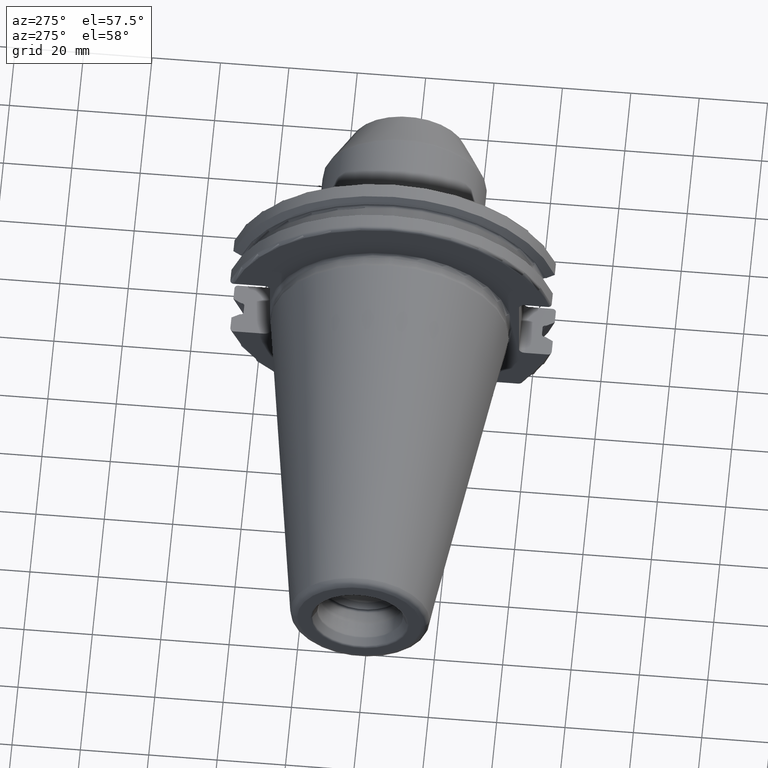
[diagram: clean part render]
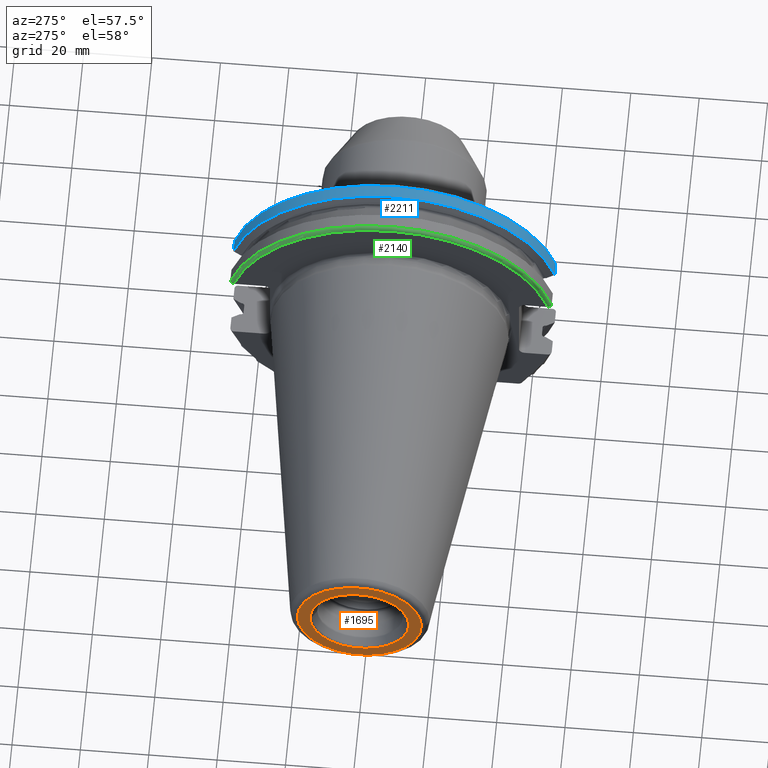
[diagram: same view with three faces highlighted in distinct colors, each labeled with its STEP entity id]
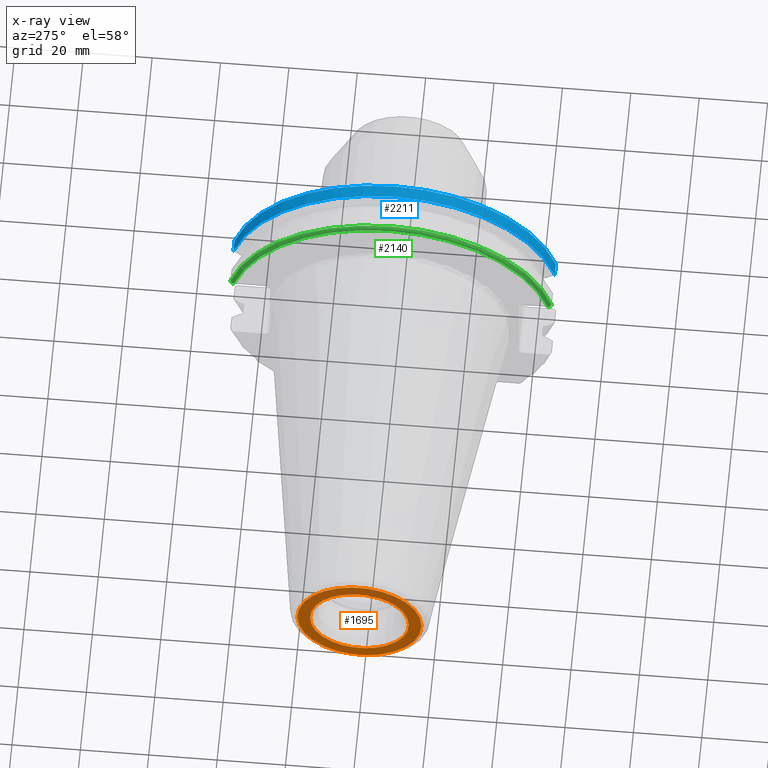
[diagram: x-ray of the same camera — body ghosted, the three highlighted faces saturated]
A machine part, auxiliary view with three faces highlighted in distinct colors.
The next image is the same camera in x-ray (body ghosted, the three faces saturated) — at least one of them is partly hidden behind the body in this view.
Their STEP definitions:

[orange] entity #1695 — the highlighted planar face has unit normal (1, 0, 0).
#2=CARTESIAN_POINT('',(-1.016E2,0.E0,0.E0));
#3=DIRECTION('',(-1.E0,0.E0,0.E0));
#4=DIRECTION('',(0.E0,1.E0,0.E0));
#5=AXIS2_PLACEMENT_3D('',#2,#3,#4);
#7=CARTESIAN_POINT('',(-1.016E2,0.E0,0.E0));
#8=DIRECTION('',(1.E0,0.E0,0.E0));
#9=DIRECTION('',(0.E0,1.E0,0.E0));
#10=AXIS2_PLACEMENT_3D('',#7,#8,#9);
#12=CARTESIAN_POINT('',(-1.016E2,0.E0,0.E0));
#13=DIRECTION('',(1.E0,0.E0,0.E0));
#14=DIRECTION('',(0.E0,1.E0,0.E0));
#15=AXIS2_PLACEMENT_3D('',#12,#13,#14);
#17=CARTESIAN_POINT('',(-1.016E2,0.E0,0.E0));
#18=DIRECTION('',(1.E0,0.E0,0.E0));
#19=DIRECTION('',(0.E0,-1.E0,0.E0));
#20=AXIS2_PLACEMENT_3D('',#17,#18,#19);
#1407=CARTESIAN_POINT('',(-1.016E2,1.816144700117E1,0.E0));
#1409=VERTEX_POINT('',#1407);
#1411=CARTESIAN_POINT('',(-1.016E2,-1.816144700117E1,0.E0));
#1413=VERTEX_POINT('',#1411);
#1470=CARTESIAN_POINT('',(-1.016E2,1.446188021535E1,0.E0));
#1471=CARTESIAN_POINT('',(-1.016E2,-1.446188021535E1,0.E0));
#1472=VERTEX_POINT('',#1470);
#1473=VERTEX_POINT('',#1471);
#1678=CARTESIAN_POINT('',(-1.016E2,0.E0,0.E0));
#1679=DIRECTION('',(1.E0,0.E0,0.E0));
#1680=DIRECTION('',(0.E0,-1.E0,0.E0));
#1681=AXIS2_PLACEMENT_3D('',#1678,#1679,#1680);
#1682=PLANE('',#1681);
#1684=ORIENTED_EDGE('',*,*,#1683,.F.);
#1686=ORIENTED_EDGE('',*,*,#1685,.T.);
#1687=EDGE_LOOP('',(#1684,#1686));
#1688=FACE_OUTER_BOUND('',#1687,.F.);
#1690=ORIENTED_EDGE('',*,*,#1689,.F.);
#1692=ORIENTED_EDGE('',*,*,#1691,.F.);
#1693=EDGE_LOOP('',(#1690,#1692));
#1694=FACE_BOUND('',#1693,.F.);
#1695=ADVANCED_FACE('',(#1688,#1694),#1682,.F.);
#6=CIRCLE('',#5,1.816144700117E1);
#11=CIRCLE('',#10,1.816144700117E1);
#16=CIRCLE('',#15,1.446188021535E1);
#21=CIRCLE('',#20,1.446188021535E1);
#1683=EDGE_CURVE('',#1409,#1413,#6,.T.);
#1685=EDGE_CURVE('',#1409,#1413,#11,.T.);
#1689=EDGE_CURVE('',#1472,#1473,#16,.T.);
#1691=EDGE_CURVE('',#1473,#1472,#21,.T.);

[blue] entity #2211 — the highlighted cylindrical surface (partial cylindrical patch) has radius 48.7375 mm, axis along (1, 0, 0).
#407=DIRECTION('',(1.E0,0.E0,0.E0));
#408=VECTOR('',#407,3.634621614173E0);
#409=CARTESIAN_POINT('',(1.441537838583E1,4.699929686974E1,1.29E1));
#410=LINE('',#409,#408);
#411=CARTESIAN_POINT('',(1.805E1,0.E0,0.E0));
#412=DIRECTION('',(1.E0,0.E0,0.E0));
#413=DIRECTION('',(0.E0,9.643354064066E-1,2.646832521159E-1));
#414=AXIS2_PLACEMENT_3D('',#411,#412,#413);
#416=DIRECTION('',(1.E0,0.E0,0.E0));
#417=VECTOR('',#416,3.634621614173E0);
#418=CARTESIAN_POINT('',(1.441537838583E1,-4.699929686974E1,1.29E1));
#419=LINE('',#418,#417);
#420=CARTESIAN_POINT('',(1.441537838583E1,0.E0,0.E0));
#421=DIRECTION('',(1.E0,0.E0,0.E0));
#422=DIRECTION('',(0.E0,9.643354064066E-1,2.646832521159E-1));
#423=AXIS2_PLACEMENT_3D('',#420,#421,#422);
#584=CARTESIAN_POINT('',(1.441537838583E1,4.699929686974E1,1.29E1));
#596=CARTESIAN_POINT('',(1.441537838583E1,-4.699929686974E1,1.29E1));
#1514=VERTEX_POINT('',#584);
#1515=VERTEX_POINT('',#596);
#1530=CARTESIAN_POINT('',(1.805E1,4.699929686974E1,1.29E1));
#1531=VERTEX_POINT('',#1530);
#1534=CARTESIAN_POINT('',(1.805E1,-4.699929686974E1,1.29E1));
#1535=VERTEX_POINT('',#1534);
#2199=CARTESIAN_POINT('',(-1.076325E2,0.E0,0.E0));
#2200=DIRECTION('',(1.E0,0.E0,0.E0));
#2201=DIRECTION('',(0.E0,-1.E0,0.E0));
#2202=AXIS2_PLACEMENT_3D('',#2199,#2200,#2201);
#2203=CYLINDRICAL_SURFACE('',#2202,4.87375E1);
#2204=ORIENTED_EDGE('',*,*,#2150,.T.);
#2205=ORIENTED_EDGE('',*,*,#2181,.T.);
#2206=ORIENTED_EDGE('',*,*,#2107,.F.);
#2208=ORIENTED_EDGE('',*,*,#2207,.F.);
#2209=EDGE_LOOP('',(#2204,#2205,#2206,#2208));
#2210=FACE_OUTER_BOUND('',#2209,.F.);
#2211=ADVANCED_FACE('',(#2210),#2203,.T.);
#415=CIRCLE('',#414,4.87375E1);
#424=CIRCLE('',#423,4.87375E1);
#2107=EDGE_CURVE('',#1515,#1535,#419,.T.);
#2150=EDGE_CURVE('',#1514,#1531,#410,.T.);
#2181=EDGE_CURVE('',#1531,#1535,#415,.T.);
#2207=EDGE_CURVE('',#1514,#1515,#424,.T.);

[green] entity #2140 — the highlighted toroidal blend (fillet) surface has major radius 47.7375 mm and minor (blend) radius 1 mm.
#317=CARTESIAN_POINT('',(3.2E0,0.E0,0.E0));
#318=DIRECTION('',(1.E0,0.E0,0.E0));
#319=DIRECTION('',(0.E0,9.627964123359E-1,2.702278083268E-1));
#320=AXIS2_PLACEMENT_3D('',#317,#318,#319);
#336=CARTESIAN_POINT('',(4.2E0,4.699929686974E1,1.29E1));
#337=CARTESIAN_POINT('',(4.123252333679E0,4.699929686974E1,1.29E1));
#338=CARTESIAN_POINT('',(3.974283567116E0,4.698148666181E1,1.29E1));
#339=CARTESIAN_POINT('',(3.759372583830E0,4.690310671304E1,1.29E1));
#340=CARTESIAN_POINT('',(3.568100173391E0,4.677722228850E1,1.29E1));
#341=CARTESIAN_POINT('',(3.409493655806E0,4.661135458292E1,1.29E1));
#342=CARTESIAN_POINT('',(3.290442678355E0,4.641353235870E1,1.29E1));
#343=CARTESIAN_POINT('',(3.216801719921E0,4.619318544857E1,1.29E1));
#344=CARTESIAN_POINT('',(3.2E0,4.604023191736E1,1.29E1));
#345=CARTESIAN_POINT('',(3.2E0,4.596149373389E1,1.29E1));
#347=CARTESIAN_POINT('',(4.2E0,0.E0,0.E0));
#348=DIRECTION('',(1.E0,0.E0,0.E0));
#349=DIRECTION('',(0.E0,9.643354064066E-1,2.646832521159E-1));
#350=AXIS2_PLACEMENT_3D('',#347,#348,#349);
#352=CARTESIAN_POINT('',(3.2E0,-4.596149373389E1,1.29E1));
#353=CARTESIAN_POINT('',(3.2E0,-4.604026443227E1,1.29E1));
#354=CARTESIAN_POINT('',(3.216813255287E0,-4.619328239852E1,1.29E1));
#355=CARTESIAN_POINT('',(3.290538328370E0,-4.641376542139E1,1.29E1));
#356=CARTESIAN_POINT('',(3.409705660893E0,-4.661163928454E1,1.29E1));
#357=CARTESIAN_POINT('',(3.568375595419E0,-4.677744698912E1,1.29E1));
#358=CARTESIAN_POINT('',(3.759602935675E0,-4.690321007119E1,1.29E1));
#359=CARTESIAN_POINT('',(3.974378910530E0,-4.698149887214E1,1.29E1));
#360=CARTESIAN_POINT('',(4.123284460641E0,-4.699929686974E1,1.29E1));
#361=CARTESIAN_POINT('',(4.2E0,-4.699929686974E1,1.29E1));
#1528=CARTESIAN_POINT('',(4.2E0,4.699929686974E1,1.29E1));
#1529=VERTEX_POINT('',#1528);
#1532=CARTESIAN_POINT('',(4.2E0,-4.699929686974E1,1.29E1));
#1533=VERTEX_POINT('',#1532);
#1549=VERTEX_POINT('',#345);
#1550=VERTEX_POINT('',#352);
#2127=CARTESIAN_POINT('',(4.2E0,0.E0,0.E0));
#2128=DIRECTION('',(1.E0,0.E0,0.E0));
#2129=DIRECTION('',(0.E0,-1.E0,0.E0));
#2130=AXIS2_PLACEMENT_3D('',#2127,#2128,#2129);
#2131=TOROIDAL_SURFACE('',#2130,4.77375E1,1.E0);
#2133=ORIENTED_EDGE('',*,*,#2132,.F.);
#2135=ORIENTED_EDGE('',*,*,#2134,.T.);
#2136=ORIENTED_EDGE('',*,*,#2089,.F.);
#2137=ORIENTED_EDGE('',*,*,#2076,.F.);
#2138=EDGE_LOOP('',(#2133,#2135,#2136,#2137));
#2139=FACE_OUTER_BOUND('',#2138,.F.);
#2140=ADVANCED_FACE('',(#2139),#2131,.T.);
#321=CIRCLE('',#320,4.77375E1);
#346=B_SPLINE_CURVE_WITH_KNOTS('',3,(#336,#337,#338,#339,#340,#341,#342,#343,
#344,#345),.UNSPECIFIED.,.F.,.F.,(4,1,1,1,1,1,1,4),(0.E0,1.428571428571E-1,
2.857142857143E-1,4.285714285714E-1,5.714285714286E-1,7.142857142857E-1,
8.571428571429E-1,1.E0),.UNSPECIFIED.);
#351=CIRCLE('',#350,4.87375E1);
#362=B_SPLINE_CURVE_WITH_KNOTS('',3,(#352,#353,#354,#355,#356,#357,#358,#359,
#360,#361),.UNSPECIFIED.,.F.,.F.,(4,1,1,1,1,1,1,4),(0.E0,1.428571428571E-1,
2.857142857143E-1,4.285714285714E-1,5.714285714286E-1,7.142857142857E-1,
8.571428571429E-1,1.E0),.UNSPECIFIED.);
#2076=EDGE_CURVE('',#1549,#1550,#321,.T.);
#2089=EDGE_CURVE('',#1550,#1533,#362,.T.);
#2132=EDGE_CURVE('',#1529,#1549,#346,.T.);
#2134=EDGE_CURVE('',#1529,#1533,#351,.T.);